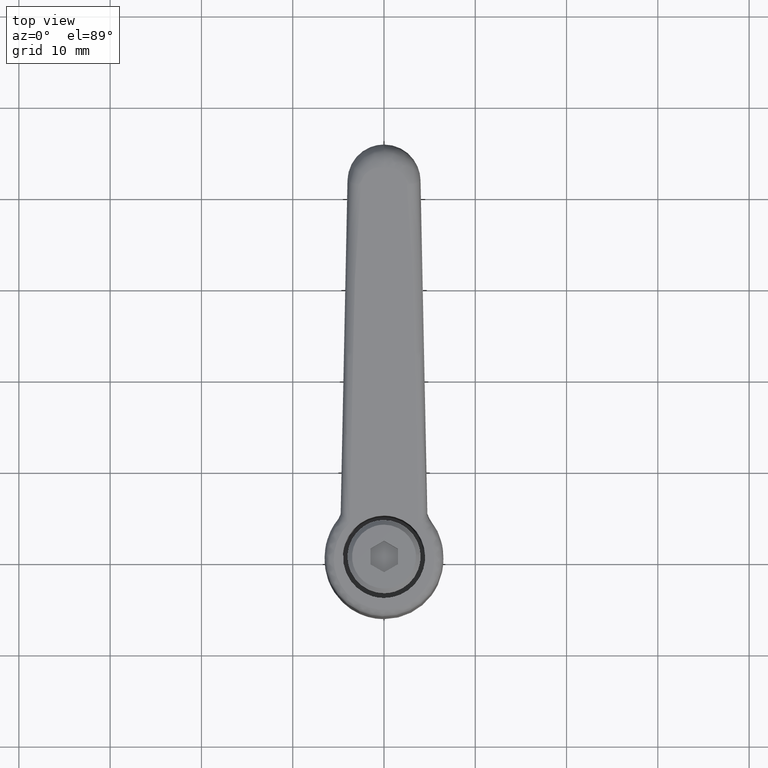
[diagram: clean part render]
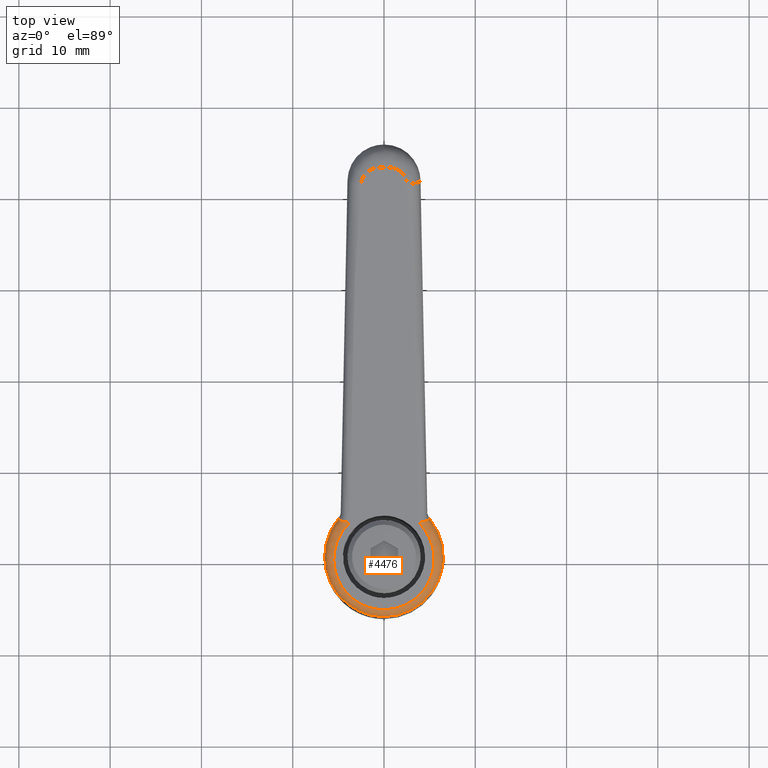
[diagram: same view with one face highlighted and labeled with its STEP entity id]
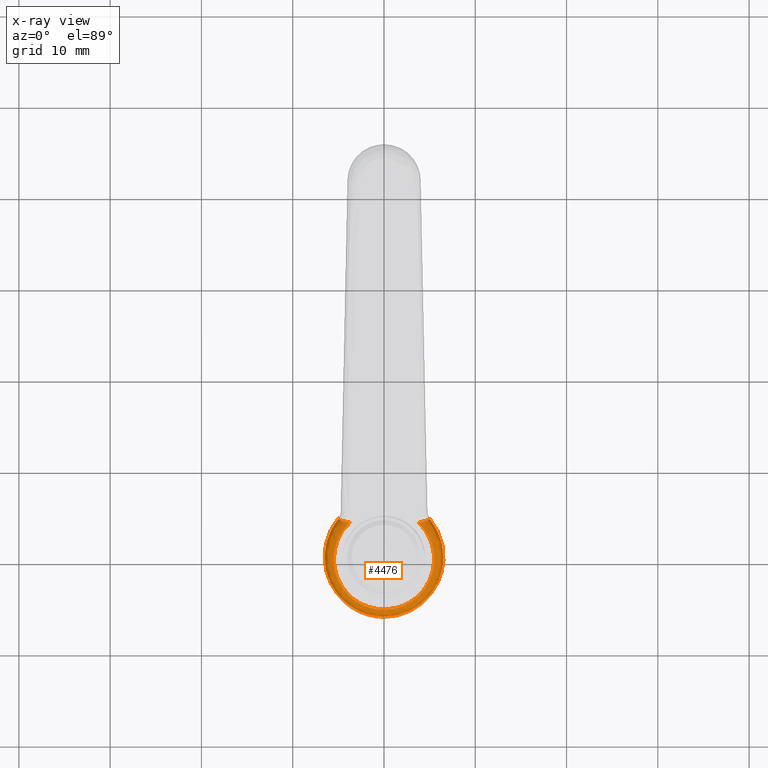
[diagram: x-ray of the same camera — body ghosted, the highlighted face saturated]
A machine part, top view. The second image highlights one B-rep face of the part: STEP entity #4476.
The next image is the same camera in x-ray: the body ghosted, the highlighted face saturated — about 0% of this face is hidden behind the body in this view.
In plain terms, the highlighted face is a freeform B-spline surface patch.
Its self-contained STEP definition (entity closure, byte-faithful):
#1830=CARTESIAN_POINT('',(-5.914549222627727,2.695415741930014,20.523474417255041));
#1831=VERTEX_POINT('',#1830);
#1832=CARTESIAN_POINT('',(4.181284398144875,4.976631469360600,22.927593921454701));
#1833=VERTEX_POINT('',#1832);
#1834=CARTESIAN_POINT('',(-5.914549222627727,2.695415741930014,20.523474417255041));
#1835=CARTESIAN_POINT('',(-5.767468683425296,3.018049889160967,20.558274624020420));
#1836=CARTESIAN_POINT('',(-5.301182122846485,3.853651200465881,20.668790276777170));
#1837=CARTESIAN_POINT('',(-4.206732573524401,5.079374765676533,20.933542399933199));
#1838=CARTESIAN_POINT('',(-2.814015692495249,5.926542062287007,21.256799776652048));
#1839=CARTESIAN_POINT('',(-0.987578070325490,6.523198876577488,21.711272153788720));
#1840=CARTESIAN_POINT('',(0.518911333204596,6.562514694377235,22.054979795739850));
#1841=CARTESIAN_POINT('',(1.794250749983869,6.257448991040055,22.359251408766799));
#1842=CARTESIAN_POINT('',(2.343493158666598,6.072421492260547,22.489194389301229));
#1843=CARTESIAN_POINT('',(2.848927942122098,5.851381398022012,22.609175225552999));
#1844=CARTESIAN_POINT('',(3.310269148965460,5.602640603026340,22.719055679617352));
#1845=CARTESIAN_POINT('',(3.726997567116454,5.332975126579158,22.818719346735140));
#1846=CARTESIAN_POINT('',(4.011130279169203,5.119872772664811,22.886882593787369));
#1847=CARTESIAN_POINT('',(4.156138780257463,4.998073741354149,22.921579445916180));
#1848=CARTESIAN_POINT('',(4.181284398144875,4.976631469360600,22.927593921454701));
#1849=B_SPLINE_CURVE_WITH_KNOTS('',3,(#1834,#1835,#1836,#1837,#1838,#1839,#1840,#1841,#1842,#1843,#1844,#1845,#1846,#1847,#1848),.UNSPECIFIED.,.F.,.U.,(4,1,1,1,1,1,1,1,1,1,1,1,4),(0.590929797457907,0.625689573868113,0.684593177289269,0.752063985464612,0.785550837866162,0.877717810244562,0.898032705466529,0.917397459694434,0.935812799731019,0.953279587977761,0.969798852578575,0.985371826641243,0.988662854138937),.UNSPECIFIED.);
#1850=EDGE_CURVE('',#1831,#1833,#1849,.T.);
#1876=CARTESIAN_POINT('',(4.181284398144875,-4.976631469360600,22.927593525127300));
#1877=VERTEX_POINT('',#1876);
#1883=CARTESIAN_POINT('',(-2.695513222067893,-5.914764970857897,21.289375932146338));
#1884=VERTEX_POINT('',#1883);
#1885=CARTESIAN_POINT('',(4.181284398144875,-4.976631469360600,22.927593525127300));
#1886=CARTESIAN_POINT('',(4.090702165474803,-5.053378183279240,22.905918210103049));
#1887=CARTESIAN_POINT('',(3.899519879876539,-5.204324889392129,22.860066822361599));
#1888=CARTESIAN_POINT('',(3.594591242378110,-5.420201657989427,22.787020845113378));
#1889=CARTESIAN_POINT('',(3.262692341992331,-5.626525204218178,22.707703076304441));
#1890=CARTESIAN_POINT('',(2.904133540324525,-5.820130717636855,22.622291337640430));
#1891=CARTESIAN_POINT('',(2.518726236430529,-5.997385157339010,22.530764670353861));
#1892=CARTESIAN_POINT('',(2.106812031960473,-6.154602996787302,22.433104016941769));
#1893=CARTESIAN_POINT('',(1.668917023192459,-6.287865515124024,22.329410970472850));
#1894=CARTESIAN_POINT('',(0.704775858350752,-6.507636202484164,22.099638519713320));
#1895=CARTESIAN_POINT('',(-0.573018561738040,-6.546654564278001,21.802535892245849));
#1896=CARTESIAN_POINT('',(-1.801453935764700,-6.266555564178022,21.510995956974210));
#1897=CARTESIAN_POINT('',(-2.411559780871937,-6.039669489233360,21.357715439856030));
#1898=CARTESIAN_POINT('',(-2.625726295114919,-5.946577606185152,21.306056125069681));
#1899=CARTESIAN_POINT('',(-2.695513222067893,-5.914764970857897,21.289375932146338));
#1900=B_SPLINE_CURVE_WITH_KNOTS('',3,(#1885,#1886,#1887,#1888,#1889,#1890,#1891,#1892,#1893,#1894,#1895,#1896,#1897,#1898,#1899),.UNSPECIFIED.,.F.,.U.,(4,1,1,1,1,1,1,1,1,1,1,1,4),(0.011339002814821,0.023162408093432,0.035602075254132,0.048614959416363,0.062201629669727,0.076362582625634,0.091098253527881,0.106409025298450,0.122295235960681,0.190526883254455,0.232580987687207,0.248311673399157,0.255996165648131),.UNSPECIFIED.);
#1901=EDGE_CURVE('',#1877,#1884,#1900,.T.);
#1966=CARTESIAN_POINT('',(-2.695513222067893,-5.914764970857897,21.289375932146338));
#1967=CARTESIAN_POINT('',(-2.881030658365713,-5.830196981669886,21.245035264184949));
#1968=CARTESIAN_POINT('',(-3.301118528395700,-5.614414166389211,21.147146363890190));
#1969=CARTESIAN_POINT('',(-3.908233196545616,-5.213518496065293,21.002177818591640));
#1970=CARTESIAN_POINT('',(-4.491701996795476,-4.718036285342000,20.863229889192159));
#1971=CARTESIAN_POINT('',(-4.987744114587986,-4.187768324420973,20.744168989618391));
#1972=CARTESIAN_POINT('',(-5.658428579897180,-3.294356971199553,20.583904423834088));
#1973=CARTESIAN_POINT('',(-6.312353545142353,-1.912611205079461,20.429865529785939));
#1974=CARTESIAN_POINT('',(-6.592020430775749,0.000144897384481,20.360860916078408));
#1975=CARTESIAN_POINT('',(-6.364158127282368,1.557564503429156,20.417237518825459));
#1976=CARTESIAN_POINT('',(-6.037645666409008,2.425372030443642,20.494346660077760));
#1977=CARTESIAN_POINT('',(-5.914549222627727,2.695415741930014,20.523474417255041));
#1978=B_SPLINE_CURVE_WITH_KNOTS('',3,(#1966,#1967,#1968,#1969,#1970,#1971,#1972,#1973,#1974,#1975,#1976,#1977),.UNSPECIFIED.,.F.,.U.,(4,1,1,1,1,1,1,1,1,4),(0.255996165648131,0.276423781504501,0.303149177105800,0.328493664012073,0.352464098916857,0.375068639120434,0.438914925397556,0.500379124790108,0.561836320899287,0.590929797457907),.UNSPECIFIED.);
#1979=EDGE_CURVE('',#1884,#1831,#1978,.T.);
#3419=CARTESIAN_POINT('',(4.163638524989050,4.968665385541600,23.097163784107750));
#3420=VERTEX_POINT('',#3419);
#3446=CARTESIAN_POINT('',(4.163638524989050,4.968665385541600,23.097163784107750));
#3447=CARTESIAN_POINT('',(4.172208192812438,4.968517627619216,23.069162933626011));
#3448=CARTESIAN_POINT('',(4.177769924184735,4.969163580543205,23.040957782431860));
#3449=CARTESIAN_POINT('',(4.182050701498064,4.971203731168734,22.998374147948208));
#3450=CARTESIAN_POINT('',(4.183171887586478,4.972492551553547,22.977013096985541));
#3451=CARTESIAN_POINT('',(4.182820104995639,4.974169231925617,22.955551963720549));
#3452=CARTESIAN_POINT('',(4.182272489821865,4.975351127609255,22.941470213553689));
#3453=CARTESIAN_POINT('',(4.181842713618806,4.975983088867379,22.934421165547519));
#3454=CARTESIAN_POINT('',(4.181284398144875,4.976631469360600,22.927593921454701));
#3455=B_SPLINE_CURVE_WITH_KNOTS('',3,(#3446,#3447,#3448,#3449,#3450,#3451,#3452,#3453,#3454),.UNSPECIFIED.,.F.,.U.,(4,2,1,2,4),(0.0,0.500000000000000,0.750000000000000,0.875000000000000,0.995680130532296),.UNSPECIFIED.);
#3456=EDGE_CURVE('',#3420,#1833,#3455,.T.);
#3511=CARTESIAN_POINT('',(3.741556348912950,3.758484842251940,24.024416672665250));
#3512=VERTEX_POINT('',#3511);
#3513=CARTESIAN_POINT('',(3.741556348912950,3.758484842251940,24.024416672665250));
#3514=CARTESIAN_POINT('',(3.745352722164541,3.794804025885900,24.025485554407851));
#3515=CARTESIAN_POINT('',(3.749577202288174,3.831595668805719,24.025412461033788));
#3516=CARTESIAN_POINT('',(3.758749316049852,3.904274807239717,24.022876210900659));
#3517=CARTESIAN_POINT('',(3.763715319865038,3.940423379098048,24.020421590387571));
#3518=CARTESIAN_POINT('',(3.779779685013938,4.048276663814265,24.009361039132930));
#3519=CARTESIAN_POINT('',(3.792035629711601,4.119394065420273,23.997092135354428));
#3520=CARTESIAN_POINT('',(3.819955362048432,4.259854285036708,23.961364958548501));
#3521=CARTESIAN_POINT('',(3.835338155111506,4.327735531976320,23.938246516025121));
#3522=CARTESIAN_POINT('',(3.868800581488037,4.457546080603265,23.881028846070372));
#3523=CARTESIAN_POINT('',(3.886941130802888,4.519744180278364,23.846840813000941));
#3524=CARTESIAN_POINT('',(3.926127485894837,4.637144545122141,23.765832548383251));
#3525=CARTESIAN_POINT('',(3.946572539304687,4.690568863338670,23.720258229422139));
#3526=CARTESIAN_POINT('',(3.978483973675151,4.762286350288108,23.643756392547751));
#3527=CARTESIAN_POINT('',(3.989329897490582,4.784779966897403,23.616890363169020));
#3528=CARTESIAN_POINT('',(4.011455299798000,4.826713833310592,23.560198454392818));
#3529=CARTESIAN_POINT('',(4.022638515802073,4.845948037142033,23.530607449315191));
#3530=CARTESIAN_POINT('',(4.055947550281950,4.897408895676183,23.439599799413092));
#3531=CARTESIAN_POINT('',(4.078064580427201,4.923921561853119,23.375393862421920));
#3532=CARTESIAN_POINT('',(4.111027278788478,4.951008749945906,23.273311067847910));
#3533=CARTESIAN_POINT('',(4.121955833812767,4.957850842354158,23.238367633844160));
#3534=CARTESIAN_POINT('',(4.143174364534928,4.966765980124219,23.168257163525929));
#3535=CARTESIAN_POINT('',(4.153534328962668,4.968903357074312,23.132876921460401));
#3536=CARTESIAN_POINT('',(4.163638524989056,4.968665385541600,23.097163784107750));
#3537=B_SPLINE_CURVE_WITH_KNOTS('',3,(#3513,#3514,#3515,#3516,#3517,#3518,#3519,#3520,#3521,#3522,#3523,#3524,#3525,#3526,#3527,#3528,#3529,#3530,#3531,#3532,#3533,#3534,#3535,#3536),.UNSPECIFIED.,.F.,.U.,(4,2,2,2,2,2,2,2,2,2,2,4),(0.0,0.062500000000001,0.125000000000002,0.250000000000003,0.375000000000003,0.500000000000004,0.625000000000005,0.687500000000003,0.750000000000001,0.874999999999998,0.937499999999999,1.0),.UNSPECIFIED.);
#3538=EDGE_CURVE('',#3512,#3420,#3537,.T.);
#3684=CARTESIAN_POINT('',(4.163638524989771,-4.968665385541330,23.097163784113349));
#3685=VERTEX_POINT('',#3684);
#3699=CARTESIAN_POINT('',(4.181284398144875,-4.976631469360600,22.927593525127300));
#3700=CARTESIAN_POINT('',(4.181842727731651,-4.975983077474349,22.934420890041050));
#3701=CARTESIAN_POINT('',(4.182272513764313,-4.975351104832515,22.941470073924151));
#3702=CARTESIAN_POINT('',(4.182820131393044,-4.974169201213294,22.955551955398970));
#3703=CARTESIAN_POINT('',(4.183171909990702,-4.972492525445594,22.977013089916259));
#3704=CARTESIAN_POINT('',(4.182050719924472,-4.971203709666276,22.998374142129759));
#3705=CARTESIAN_POINT('',(4.177769934676788,-4.969163568253246,23.040957779113040));
#3706=CARTESIAN_POINT('',(4.172208198043167,-4.968517621472947,23.069162931970901));
#3707=CARTESIAN_POINT('',(4.163638524989771,-4.968665385541330,23.097163784113349));
#3708=B_SPLINE_CURVE_WITH_KNOTS('',3,(#3699,#3700,#3701,#3702,#3703,#3704,#3705,#3706,#3707),.UNSPECIFIED.,.F.,.U.,(4,2,1,2,4),(0.004317592896361,0.124999999999977,0.249999999999955,0.499999999999970,1.0),.UNSPECIFIED.);
#3709=EDGE_CURVE('',#1877,#3685,#3708,.T.);
#3774=CARTESIAN_POINT('',(3.741556339639425,-3.758484852029455,24.024416670054251));
#3775=VERTEX_POINT('',#3774);
#3807=CARTESIAN_POINT('',(4.163638524989771,-4.968665385541330,23.097163784113349));
#3808=CARTESIAN_POINT('',(4.153529245882374,-4.968903476789263,23.132894887545920));
#3809=CARTESIAN_POINT('',(4.143154223186832,-4.966764003433637,23.168327075770041));
#3810=CARTESIAN_POINT('',(4.121883131427337,-4.957813781620311,23.238604482072969));
#3811=CARTESIAN_POINT('',(4.110937720230544,-4.950941241195141,23.273591548058580));
#3812=CARTESIAN_POINT('',(4.078100363703278,-4.923938754421079,23.375276774807169));
#3813=CARTESIAN_POINT('',(4.055995588315112,-4.897485188853751,23.439469571665779));
#3814=CARTESIAN_POINT('',(4.022601156036459,-4.845889279083258,23.530709012818889));
#3815=CARTESIAN_POINT('',(4.011348839322964,-4.826519929455452,23.560474992452932));
#3816=CARTESIAN_POINT('',(3.989301155362645,-4.784717575291861,23.616960231678579));
#3817=CARTESIAN_POINT('',(3.978487658397528,-4.762291007977880,23.643745893314751));
#3818=CARTESIAN_POINT('',(3.946657139850419,-4.690766224659898,23.720058739620569));
#3819=CARTESIAN_POINT('',(3.926244339759413,-4.637459013129312,23.765575921888839));
#3820=CARTESIAN_POINT('',(3.896877502890598,-4.549530685664882,23.826307232684570));
#3821=CARTESIAN_POINT('',(3.887399728059820,-4.519172381240916,23.845070483643099));
#3822=CARTESIAN_POINT('',(3.869237548777639,-4.457161497718112,23.879473960253549));
#3823=CARTESIAN_POINT('',(3.860518913182192,-4.425406040641242,23.895184676722611));
#3824=CARTESIAN_POINT('',(3.835407469163905,-4.328030285499902,23.938138044337069));
#3825=CARTESIAN_POINT('',(3.820039612429144,-4.260246950638842,23.961245870372039));
#3826=CARTESIAN_POINT('',(3.792088036805930,-4.119688751853808,23.997036296365810));
#3827=CARTESIAN_POINT('',(3.779821077806553,-4.048531257693738,24.009324528967909));
#3828=CARTESIAN_POINT('',(3.758385607573019,-3.904663878115852,24.024099161400471));
#3829=CARTESIAN_POINT('',(3.749238869269740,-3.831981977343015,24.026579712284050));
#3830=CARTESIAN_POINT('',(3.741556339639425,-3.758484852029455,24.024416670054251));
#3831=B_SPLINE_CURVE_WITH_KNOTS('',3,(#3807,#3808,#3809,#3810,#3811,#3812,#3813,#3814,#3815,#3816,#3817,#3818,#3819,#3820,#3821,#3822,#3823,#3824,#3825,#3826,#3827,#3828,#3829,#3830),.UNSPECIFIED.,.F.,.U.,(4,2,2,2,2,2,2,2,2,2,2,4),(0.0,0.062499999999996,0.124999999999993,0.249999999999986,0.312499999999985,0.374999999999983,0.499999999999985,0.562499999999987,0.624999999999988,0.749999999999993,0.874999999999997,1.0),.UNSPECIFIED.);
#3832=EDGE_CURVE('',#3685,#3775,#3831,.T.);
#4345=CARTESIAN_POINT('',(4.862823855069459,-4.309823927916490,23.081035562931220));
#4346=CARTESIAN_POINT('',(4.862185603264972,-4.310531915212756,23.085652663558843));
#4347=CARTESIAN_POINT('',(4.695293787637584,-4.495658356666780,24.292944677884822));
#4348=CARTESIAN_POINT('',(3.839919179464178,-3.645282528631858,24.052111060661488));
#4349=CARTESIAN_POINT('',(3.837239240302095,-3.642618250943157,24.051356514716151));
#4350=CARTESIAN_POINT('',(4.252952668412853,-4.995581862391025,22.935809634778355));
#4351=CARTESIAN_POINT('',(4.252129047400985,-4.996284011783517,22.940348818195684));
#4352=CARTESIAN_POINT('',(4.040172814769420,-5.176979911757748,24.108493149746913));
#4353=CARTESIAN_POINT('',(3.323962135296110,-4.225161806074728,23.906841607855807));
#4354=CARTESIAN_POINT('',(3.321682192742731,-4.222131844829499,23.906199682310010));
#4355=CARTESIAN_POINT('',(3.490085779563940,-5.564397197011732,22.754159606660615));
#4356=CARTESIAN_POINT('',(3.489076662146574,-5.565014077363641,22.758608326372283));
#4357=CARTESIAN_POINT('',(3.234342807166529,-5.720734618303353,23.881608982569549));
#4358=CARTESIAN_POINT('',(2.678612236293270,-4.706078051482670,23.725141158649780));
#4359=CARTESIAN_POINT('',(2.676808764767012,-4.702785261193453,23.724633385135043));
#4360=CARTESIAN_POINT('',(1.353690353767284,-6.507760876151415,22.245494443347244));
#4361=CARTESIAN_POINT('',(1.352487199234859,-6.508019343399790,22.249746033168304));
#4362=CARTESIAN_POINT('',(1.063641509728285,-6.570070516843874,23.270440682330218));
#4363=CARTESIAN_POINT('',(0.871717197951291,-5.503354066947102,23.216403742494375));
#4364=CARTESIAN_POINT('',(0.871062345656158,-5.499714394052076,23.216219366613348));
#4365=CARTESIAN_POINT('',(-0.130542680774214,-6.654302259744859,21.892152110132539));
#4366=CARTESIAN_POINT('',(-0.131750041778800,-6.654253389261466,21.896274738440852));
#4367=CARTESIAN_POINT('',(-0.412475833247814,-6.642890420707672,22.854834846306066));
#4368=CARTESIAN_POINT('',(-0.383419586623945,-5.626890994477677,22.863015730929337));
#4369=CARTESIAN_POINT('',(-0.383317226490111,-5.623311804137281,22.863044550771594));
#4370=CARTESIAN_POINT('',(-2.912266338254474,-5.984606964673142,21.230012421662845));
#4371=CARTESIAN_POINT('',(-2.913189101801309,-5.984128484826220,21.233918787968175));
#4372=CARTESIAN_POINT('',(-3.116257681358932,-5.878831496021119,22.093575912024356));
#4373=CARTESIAN_POINT('',(-2.735384481426108,-5.060032209918684,22.200812051091969));
#4374=CARTESIAN_POINT('',(-2.733966970871798,-5.056984852871466,22.201211155988194));
#4375=CARTESIAN_POINT('',(-4.197670197840966,-5.169702143928210,20.924080630304093));
#4376=CARTESIAN_POINT('',(-4.198311187900246,-5.169124715149257,20.927904988146938));
#4377=CARTESIAN_POINT('',(-4.336120286321139,-5.044980918725073,21.750119465161070));
#4378=CARTESIAN_POINT('',(-3.822014273201888,-4.370810595005151,21.894867753910955));
#4379=CARTESIAN_POINT('',(-3.820055846187820,-4.368242421631638,21.895419155667980));
#4380=CARTESIAN_POINT('',(-5.994998525565149,-2.899359092673446,20.496345970583214));
#4381=CARTESIAN_POINT('',(-5.995167143177000,-2.898906015431704,20.500055585820171));
#4382=CARTESIAN_POINT('',(-6.030305978308898,-2.804487607266472,21.273115747110257));
#4383=CARTESIAN_POINT('',(-5.341279538326600,-2.451144630956787,21.467113474313358));
#4384=CARTESIAN_POINT('',(-5.338571782100888,-2.449756053409691,21.467875852247101));
#4385=CARTESIAN_POINT('',(-6.500000000000004,-1.452331352507950,20.376171115169580));
#4386=CARTESIAN_POINT('',(-6.499999999999997,-1.452099775967598,20.379853423467786));
#4387=CARTESIAN_POINT('',(-6.500000000000007,-1.404240121194415,21.140871804925116));
#4388=CARTESIAN_POINT('',(-5.768110138669221,-1.227802809889180,21.346937873547141));
#4389=CARTESIAN_POINT('',(-5.765209974880120,-1.227103664938103,21.347754424481877));
#4390=CARTESIAN_POINT('',(-6.500000000000004,1.452331352507936,20.376171115169580));
#4391=CARTESIAN_POINT('',(-6.499999999999997,1.452099775967584,20.379853423467786));
#4392=CARTESIAN_POINT('',(-6.500000000000007,1.404240121194410,21.140871804925116));
#4393=CARTESIAN_POINT('',(-5.768110138669221,1.227802809889180,21.346937873547098));
#4394=CARTESIAN_POINT('',(-5.765209974880120,1.227103664938103,21.347754424481828));
#4395=CARTESIAN_POINT('',(-5.994998525564928,2.899359092673759,20.496345970583235));
#4396=CARTESIAN_POINT('',(-5.995167143176774,2.898906015432010,20.500055585820181));
#4397=CARTESIAN_POINT('',(-6.030305978308272,2.804487607265853,21.273115747110243));
#4398=CARTESIAN_POINT('',(-5.341279538326606,2.451144630956790,21.467113474313368));
#4399=CARTESIAN_POINT('',(-5.338571782100891,2.449756053409695,21.467875852247097));
#4400=CARTESIAN_POINT('',(-4.197670197841198,5.169702143927903,20.924080630304097));
#4401=CARTESIAN_POINT('',(-4.198311187900482,5.169124715148955,20.927904988146953));
#4402=CARTESIAN_POINT('',(-4.336120286321751,5.044980918725686,21.750119465161085));
#4403=CARTESIAN_POINT('',(-3.822014273201887,4.370810595005155,21.894867753910965));
#4404=CARTESIAN_POINT('',(-3.820055846187812,4.368242421631635,21.895419155667970));
#4405=CARTESIAN_POINT('',(-2.912266338255236,5.984606964672954,21.230012421662863));
#4406=CARTESIAN_POINT('',(-2.913189101802065,5.984128484826037,21.233918787968179));
#4407=CARTESIAN_POINT('',(-3.116257681358308,5.878831496021745,22.093575912021780));
#4408=CARTESIAN_POINT('',(-2.735384481426118,5.060032209918677,22.200812051091972));
#4409=CARTESIAN_POINT('',(-2.733966970871808,5.056984852871453,22.201211155988197));
#4410=CARTESIAN_POINT('',(-0.130542680773468,6.654302259745045,21.892152110132525));
#4411=CARTESIAN_POINT('',(-0.131750041778059,6.654253389261651,21.896274738440844));
#4412=CARTESIAN_POINT('',(-0.412475833248446,6.642890420707039,22.854834846308599));
#4413=CARTESIAN_POINT('',(-0.383419586623948,5.626890994477677,22.863015730929305));
#4414=CARTESIAN_POINT('',(-0.383317226490112,5.623311804137295,22.863044550771590));
#4415=CARTESIAN_POINT('',(1.353690353768465,6.507760876150878,22.245494443345461));
#4416=CARTESIAN_POINT('',(1.352487199236036,6.508019343399261,22.249746033166506));
#4417=CARTESIAN_POINT('',(1.063641509728644,6.570070516845056,23.270440682325528));
#4418=CARTESIAN_POINT('',(0.871717197950816,5.503354066949932,23.216403742494222));
#4419=CARTESIAN_POINT('',(0.871062345655680,5.499714394054911,23.216219366613227));
#4420=CARTESIAN_POINT('',(3.490085779527647,5.564397197027764,22.754159606653374));
#4421=CARTESIAN_POINT('',(3.489076662110273,5.565014077379672,22.758608326365064));
#4422=CARTESIAN_POINT('',(3.234342807127618,5.720734618317704,23.881608982561804));
#4423=CARTESIAN_POINT('',(2.678612236263567,4.706078051493985,23.725141158641406));
#4424=CARTESIAN_POINT('',(2.676808764737340,4.702785261204761,23.724633385126690));
#4425=CARTESIAN_POINT('',(4.252952668349699,4.995581862437887,22.935809634765615));
#4426=CARTESIAN_POINT('',(4.252129047337849,4.996284011830333,22.940348818182560));
#4427=CARTESIAN_POINT('',(4.040172814711653,5.176979911792145,24.108493149633968));
#4428=CARTESIAN_POINT('',(3.323962135302235,4.225161806151561,23.906841607857825));
#4429=CARTESIAN_POINT('',(3.321682192749059,4.222131844906468,23.906199682312423));
#4430=CARTESIAN_POINT('',(4.862823854994082,4.309823928001016,23.081035562915030));
#4431=CARTESIAN_POINT('',(4.862185603189606,4.310531915297247,23.085652663542295));
#4432=CARTESIAN_POINT('',(4.695293787565050,4.495658356741598,24.292944677768944));
#4433=CARTESIAN_POINT('',(3.839919179457356,3.645282528739806,24.052111060659882));
#4434=CARTESIAN_POINT('',(3.837239240295471,3.642618251051197,24.051356514714886));
#4442=(BOUNDED_SURFACE()B_SPLINE_SURFACE(2,3,((#4345,#4350,#4355,#4360,#4365,#4370,#4375,#4380,#4385,#4390,#4395,#4400,#4405,#4410,#4415,#4420,#4425,#4430),(#4346,#4351,#4356,#4361,#4366,#4371,#4376,#4381,#4386,#4391,#4396,#4401,#4406,#4411,#4416,#4421,#4426,#4431),(#4347,#4352,#4357,#4362,#4367,#4372,#4377,#4382,#4387,#4392,#4397,#4402,#4407,#4412,#4417,#4422,#4427,#4432),(#4348,#4353,#4358,#4363,#4368,#4373,#4378,#4383,#4388,#4393,#4398,#4403,#4408,#4413,#4418,#4423,#4428,#4433),(#4349,#4354,#4359,#4364,#4369,#4374,#4379,#4384,#4389,#4394,#4399,#4404,#4409,#4414,#4419,#4424,#4429,#4434)),.UNSPECIFIED.,.F.,.F.,.U.)B_SPLINE_SURFACE_WITH_KNOTS((3,1,1,3),(4,2,2,2,2,2,2,2,4),(0.0,0.011638799324743,1.912786985999034,1.922303582697825),(0.0,2.997282094405039,7.408151254188677,11.819020413972350,16.229889573756029,20.640758733539631,25.051627893323310,29.462497053106979,32.459779147388900),.UNSPECIFIED.)GEOMETRIC_REPRESENTATION_ITEM()RATIONAL_B_SPLINE_SURFACE(((1.004513718942381,1.004390447131620,1.004238760067860,1.003830087609656,1.003558799294307,1.003072044312096,1.002857691993159,1.002563241298770,1.002483228452529,1.002483228452529,1.002563241298770,1.002857691993158,1.003072044312088,1.003558799294315,1.003830087609648,1.004238760067859,1.004390447131608,1.004513718942365),(1.002256859471191,1.002195223565810,1.002119380033930,1.001915043804828,1.001779399647154,1.001536022156048,1.001428845996580,1.001281620649385,1.001241614226265,1.001241614226265,1.001281620649385,1.001428845996579,1.001536022156044,1.001779399647158,1.001915043804824,1.002119380033929,1.002195223565804,1.002256859471183),(0.631351639330058,0.641419601366286,0.653808318542443,0.687185769307795,0.709342663434064,0.749097337690665,0.766604105832525,0.790652737829896,0.797187616269496,0.797187616269496,0.790652737829819,0.766604105832605,0.749097337691309,0.709342663433421,0.687185769308475,0.653808318542537,0.641419601367245,0.631351639331385),(1.001845346826069,1.001794949526716,1.001732935199897,1.001565857357152,1.001454946368216,1.001255945993367,1.001168312187085,1.001047931706762,1.001015219999689,1.001015219999689,1.001047931706762,1.001168312187084,1.001255945993364,1.001454946368220,1.001565857357149,1.001732935199897,1.001794949526712,1.001845346826062),(1.003690693652138,1.003589899053433,1.003465870399794,1.003131714714304,1.002909892736433,1.002511891986734,1.002336624374169,1.002095863413524,1.002030439999377,1.002030439999377,1.002095863413525,1.002336624374169,1.002511891986728,1.002909892736439,1.003131714714297,1.003465870399793,1.003589899053423,1.003690693652125)))REPRESENTATION_ITEM('')SURFACE());
#4443=ORIENTED_EDGE('',*,*,#3538,.T.);
#4444=ORIENTED_EDGE('',*,*,#3456,.T.);
#4445=ORIENTED_EDGE('',*,*,#1850,.F.);
#4446=ORIENTED_EDGE('',*,*,#1979,.F.);
#4447=ORIENTED_EDGE('',*,*,#1901,.F.);
#4448=ORIENTED_EDGE('',*,*,#3709,.T.);
#4449=ORIENTED_EDGE('',*,*,#3832,.T.);
#4450=CARTESIAN_POINT('',(3.741556348912950,3.758484842251940,24.024416672665250));
#4451=CARTESIAN_POINT('',(2.613139403515386,4.959543020966351,23.706707060891489));
#4452=CARTESIAN_POINT('',(1.032099445580706,5.341404178719200,23.261559907365498));
#4453=CARTESIAN_POINT('',(-0.624181604022181,5.741437964070228,22.795228369715510));
#4454=CARTESIAN_POINT('',(-2.192471926375449,5.152285785134270,22.353670919257478));
#4455=CARTESIAN_POINT('',(-3.810883881900226,4.544304650248243,21.898001553269161));
#4456=CARTESIAN_POINT('',(-4.783181073866730,3.144328942083274,21.624247986692271));
#4457=CARTESIAN_POINT('',(-5.260095932126037,2.457636414384234,21.489970993525240));
#4458=CARTESIAN_POINT('',(-5.515229278830568,1.647916624146206,21.418137335884211));
#4459=CARTESIAN_POINT('',(-5.770869703846800,0.836587513332265,21.346160908627549));
#4460=CARTESIAN_POINT('',(-5.771016191066890,7.221335E-009,21.346119664654729));
#4461=CARTESIAN_POINT('',(-5.771162351260350,-0.834719852034760,21.346078512757369));
#4462=CARTESIAN_POINT('',(-5.515229283165072,-1.647916610380662,21.418137334663822));
#4463=CARTESIAN_POINT('',(-5.260924864110520,-2.455938530906754,21.489737604918268));
#4464=CARTESIAN_POINT('',(-4.783181082079061,-3.144328930253737,21.624247984380059));
#4465=CARTESIAN_POINT('',(-3.812428997375039,-4.543104676564713,21.897566520775499));
#4466=CARTESIAN_POINT('',(-2.192471939731651,-5.152285780113730,22.353670915496991));
#4467=CARTESIAN_POINT('',(-0.626072853114904,-5.741326532570756,22.794695882129719));
#4468=CARTESIAN_POINT('',(1.032099432001138,-5.341404181994691,23.261559903542128));
#4469=CARTESIAN_POINT('',(2.612481245364900,-4.960243541884735,23.706521754235709));
#4470=CARTESIAN_POINT('',(3.741556339639425,-3.758484852029455,24.024416670054251));
#4471=B_SPLINE_CURVE_WITH_KNOTS('',2,(#4450,#4451,#4452,#4453,#4454,#4455,#4456,#4457,#4458,#4459,#4460,#4461,#4462,#4463,#4464,#4465,#4466,#4467,#4468,#4469,#4470),.UNSPECIFIED.,.F.,.U.,(3,2,2,2,2,2,2,2,2,2,3),(0.0,0.125000000000000,0.250000000000000,0.375000000000000,0.437500000000000,0.500000000000000,0.562500000000000,0.625000000000000,0.750000000000000,0.875000000000000,1.0),.UNSPECIFIED.);
#4472=EDGE_CURVE('',#3512,#3775,#4471,.T.);
#4473=ORIENTED_EDGE('',*,*,#4472,.F.);
#4474=EDGE_LOOP('',(#4443,#4444,#4445,#4446,#4447,#4448,#4449,#4473));
#4475=FACE_OUTER_BOUND('',#4474,.T.);
#4476=ADVANCED_FACE('',(#4475),#4442,.T.);